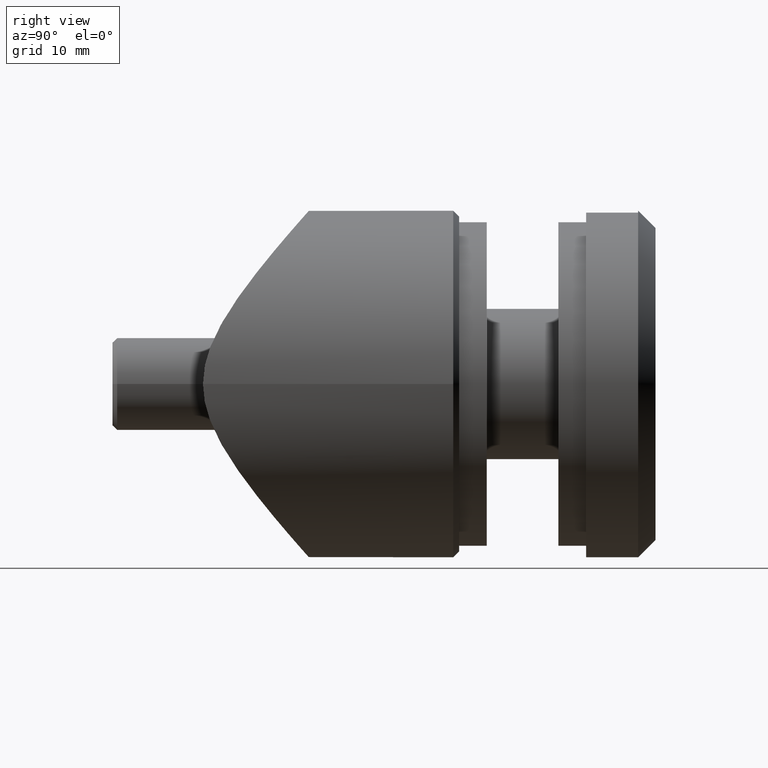
[diagram: clean part render]
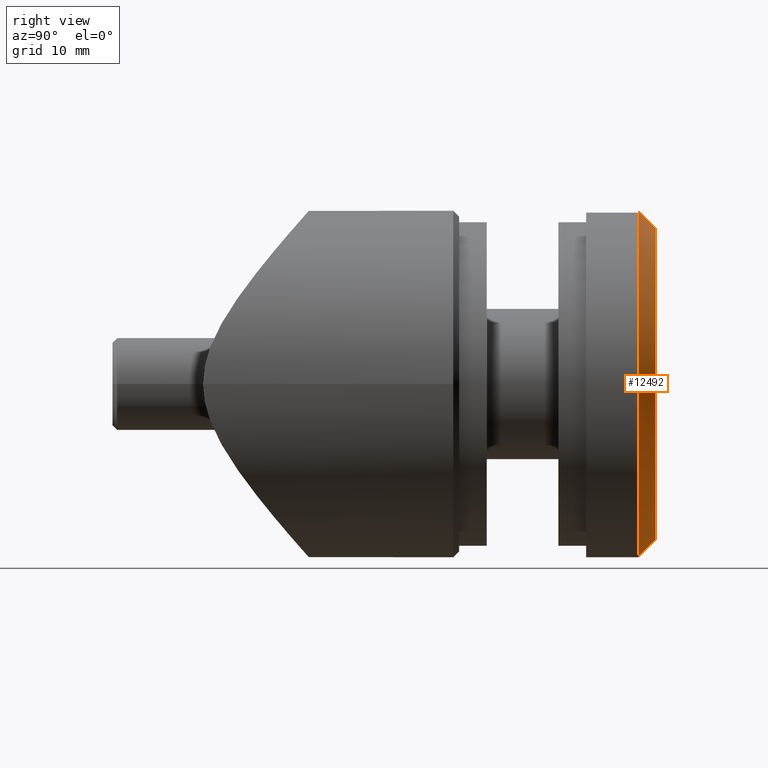
[diagram: same view with one face highlighted and labeled with its STEP entity id]
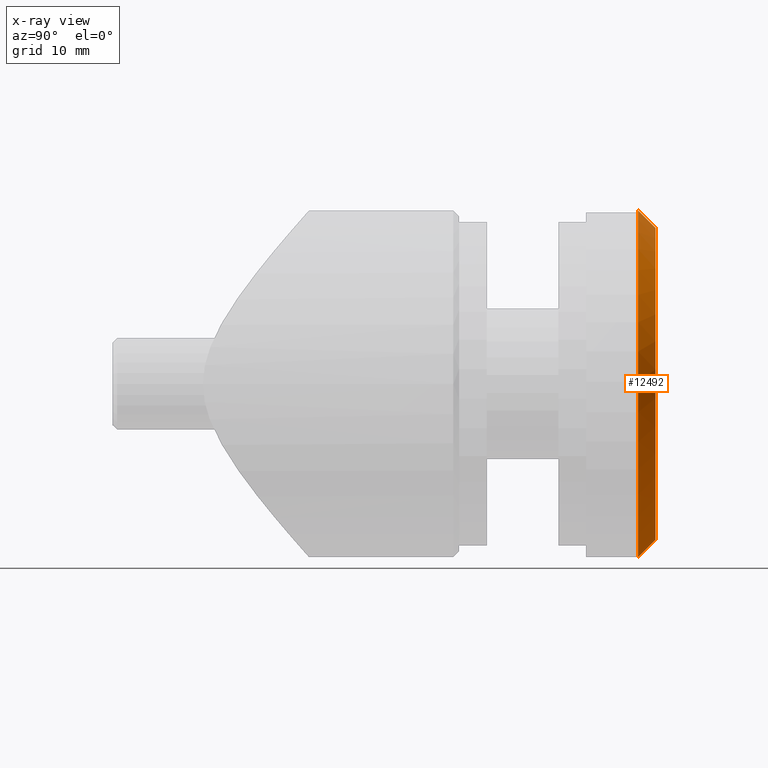
[diagram: x-ray of the same camera — body ghosted, the highlighted face saturated]
A machine part, right view. The second image highlights one B-rep face of the part: STEP entity #12492.
The next image is the same camera in x-ray: the body ghosted, the highlighted face saturated — about 0% of this face is hidden behind the body in this view.
In plain terms, the highlighted conical surface has half-angle 45 deg.
Its self-contained STEP definition (entity closure, byte-faithful):
#973 = DIRECTION ( 'NONE',  ( 0.000000000000000000, -0.7071067811865471286, -0.7071067811865479058 ) ) ;
#1338 = CARTESIAN_POINT ( 'NONE',  ( 1.836970198721029983E-15, 9.500000000000001776, 15.00000000000000178 ) ) ;
#1535 = EDGE_CURVE ( 'NONE', #5335, #8588, #9253, .T. ) ;
#1743 = CARTESIAN_POINT ( 'NONE',  ( 0.000000000000000000, 9.500000000000001776, 0.000000000000000000 ) ) ;
#1984 = DIRECTION ( 'NONE',  ( 0.000000000000000000, 0.000000000000000000, -1.000000000000000000 ) ) ;
#2387 = EDGE_CURVE ( 'NONE', #12817, #7033, #14215, .T. ) ;
#2656 = DIRECTION ( 'NONE',  ( -0.000000000000000000, -1.000000000000000000, -0.000000000000000000 ) ) ;
#2768 = ORIENTED_EDGE ( 'NONE', *, *, #3526, .T. ) ;
#3175 = CONICAL_SURFACE ( 'NONE', #6315, 15.00000000000000178, 0.7853981633974488341 ) ;
#3462 = CIRCLE ( 'NONE', #9876, 15.00000000000000178 ) ;
#3526 = EDGE_CURVE ( 'NONE', #9644, #12817, #6885, .T. ) ;
#3895 = VECTOR ( 'NONE', #10799, 1000.000000000000000 ) ;
#4274 = AXIS2_PLACEMENT_3D ( 'NONE', #1743, #7650, #5156 ) ;
#4679 = DIRECTION ( 'NONE',  ( -0.000000000000000000, -1.000000000000000000, -0.000000000000000000 ) ) ;
#4825 = EDGE_CURVE ( 'NONE', #8588, #7033, #3462, .T. ) ;
#5156 = DIRECTION ( 'NONE',  ( 0.000000000000000000, 0.000000000000000000, -1.000000000000000000 ) ) ;
#5302 = CARTESIAN_POINT ( 'NONE',  ( 0.000000000000000000, 9.500000000000001776, -15.00000000000000355 ) ) ;
#5335 = VERTEX_POINT ( 'NONE', #5302 ) ;
#5773 = ORIENTED_EDGE ( 'NONE', *, *, #6285, .F. ) ;
#6285 = EDGE_CURVE ( 'NONE', #9644, #5335, #11029, .T. ) ;
#6315 = AXIS2_PLACEMENT_3D ( 'NONE', #10261, #7840, #1984 ) ;
#6885 = CIRCLE ( 'NONE', #8405, 13.50000000000000000 ) ;
#7033 = VERTEX_POINT ( 'NONE', #12696 ) ;
#7650 = DIRECTION ( 'NONE',  ( -0.000000000000000000, -1.000000000000000000, -0.000000000000000000 ) ) ;
#7840 = DIRECTION ( 'NONE',  ( -0.000000000000000000, -1.000000000000000000, -0.000000000000000000 ) ) ;
#8068 = DIRECTION ( 'NONE',  ( 0.000000000000000000, 0.000000000000000000, -1.000000000000000000 ) ) ;
#8405 = AXIS2_PLACEMENT_3D ( 'NONE', #9187, #4679, #8068 ) ;
#8535 = CARTESIAN_POINT ( 'NONE',  ( 1.745121688784978228E-15, 11.00000000000000000, 13.50000000000000000 ) ) ;
#8588 = VERTEX_POINT ( 'NONE', #9000 ) ;
#9000 = CARTESIAN_POINT ( 'NONE',  ( 2.250000000000005773, 9.500000000000001776, 14.83028994996389294 ) ) ;
#9187 = CARTESIAN_POINT ( 'NONE',  ( 0.000000000000000000, 11.00000000000000000, 0.000000000000000000 ) ) ;
#9253 = CIRCLE ( 'NONE', #4274, 15.00000000000000178 ) ;
#9644 = VERTEX_POINT ( 'NONE', #12323 ) ;
#9809 = ORIENTED_EDGE ( 'NONE', *, *, #4825, .F. ) ;
#9876 = AXIS2_PLACEMENT_3D ( 'NONE', #14342, #2656, #14442 ) ;
#9902 = VECTOR ( 'NONE', #973, 1000.000000000000000 ) ;
#10261 = CARTESIAN_POINT ( 'NONE',  ( 0.000000000000000000, 9.500000000000001776, 0.000000000000000000 ) ) ;
#10799 = DIRECTION ( 'NONE',  ( 8.659560562354937789E-17, -0.7071067811865471286, 0.7071067811865479058 ) ) ;
#11029 = LINE ( 'NONE', #12684, #9902 ) ;
#11418 = EDGE_LOOP ( 'NONE', ( #2768, #12154, #9809, #14444, #5773 ) ) ;
#11662 = FACE_OUTER_BOUND ( 'NONE', #11418, .T. ) ;
#12154 = ORIENTED_EDGE ( 'NONE', *, *, #2387, .T. ) ;
#12323 = CARTESIAN_POINT ( 'NONE',  ( 0.000000000000000000, 11.00000000000000000, -13.50000000000000000 ) ) ;
#12492 = ADVANCED_FACE ( 'NONE', ( #11662 ), #3175, .T. ) ;
#12684 = CARTESIAN_POINT ( 'NONE',  ( 0.000000000000000000, 9.500000000000001776, -15.00000000000000178 ) ) ;
#12696 = CARTESIAN_POINT ( 'NONE',  ( 1.836970198721029983E-15, 9.500000000000001776, 15.00000000000000178 ) ) ;
#12817 = VERTEX_POINT ( 'NONE', #8535 ) ;
#14215 = LINE ( 'NONE', #1338, #3895 ) ;
#14342 = CARTESIAN_POINT ( 'NONE',  ( 0.000000000000000000, 9.500000000000001776, 0.000000000000000000 ) ) ;
#14442 = DIRECTION ( 'NONE',  ( 0.000000000000000000, 0.000000000000000000, -1.000000000000000000 ) ) ;
#14444 = ORIENTED_EDGE ( 'NONE', *, *, #1535, .F. ) ;